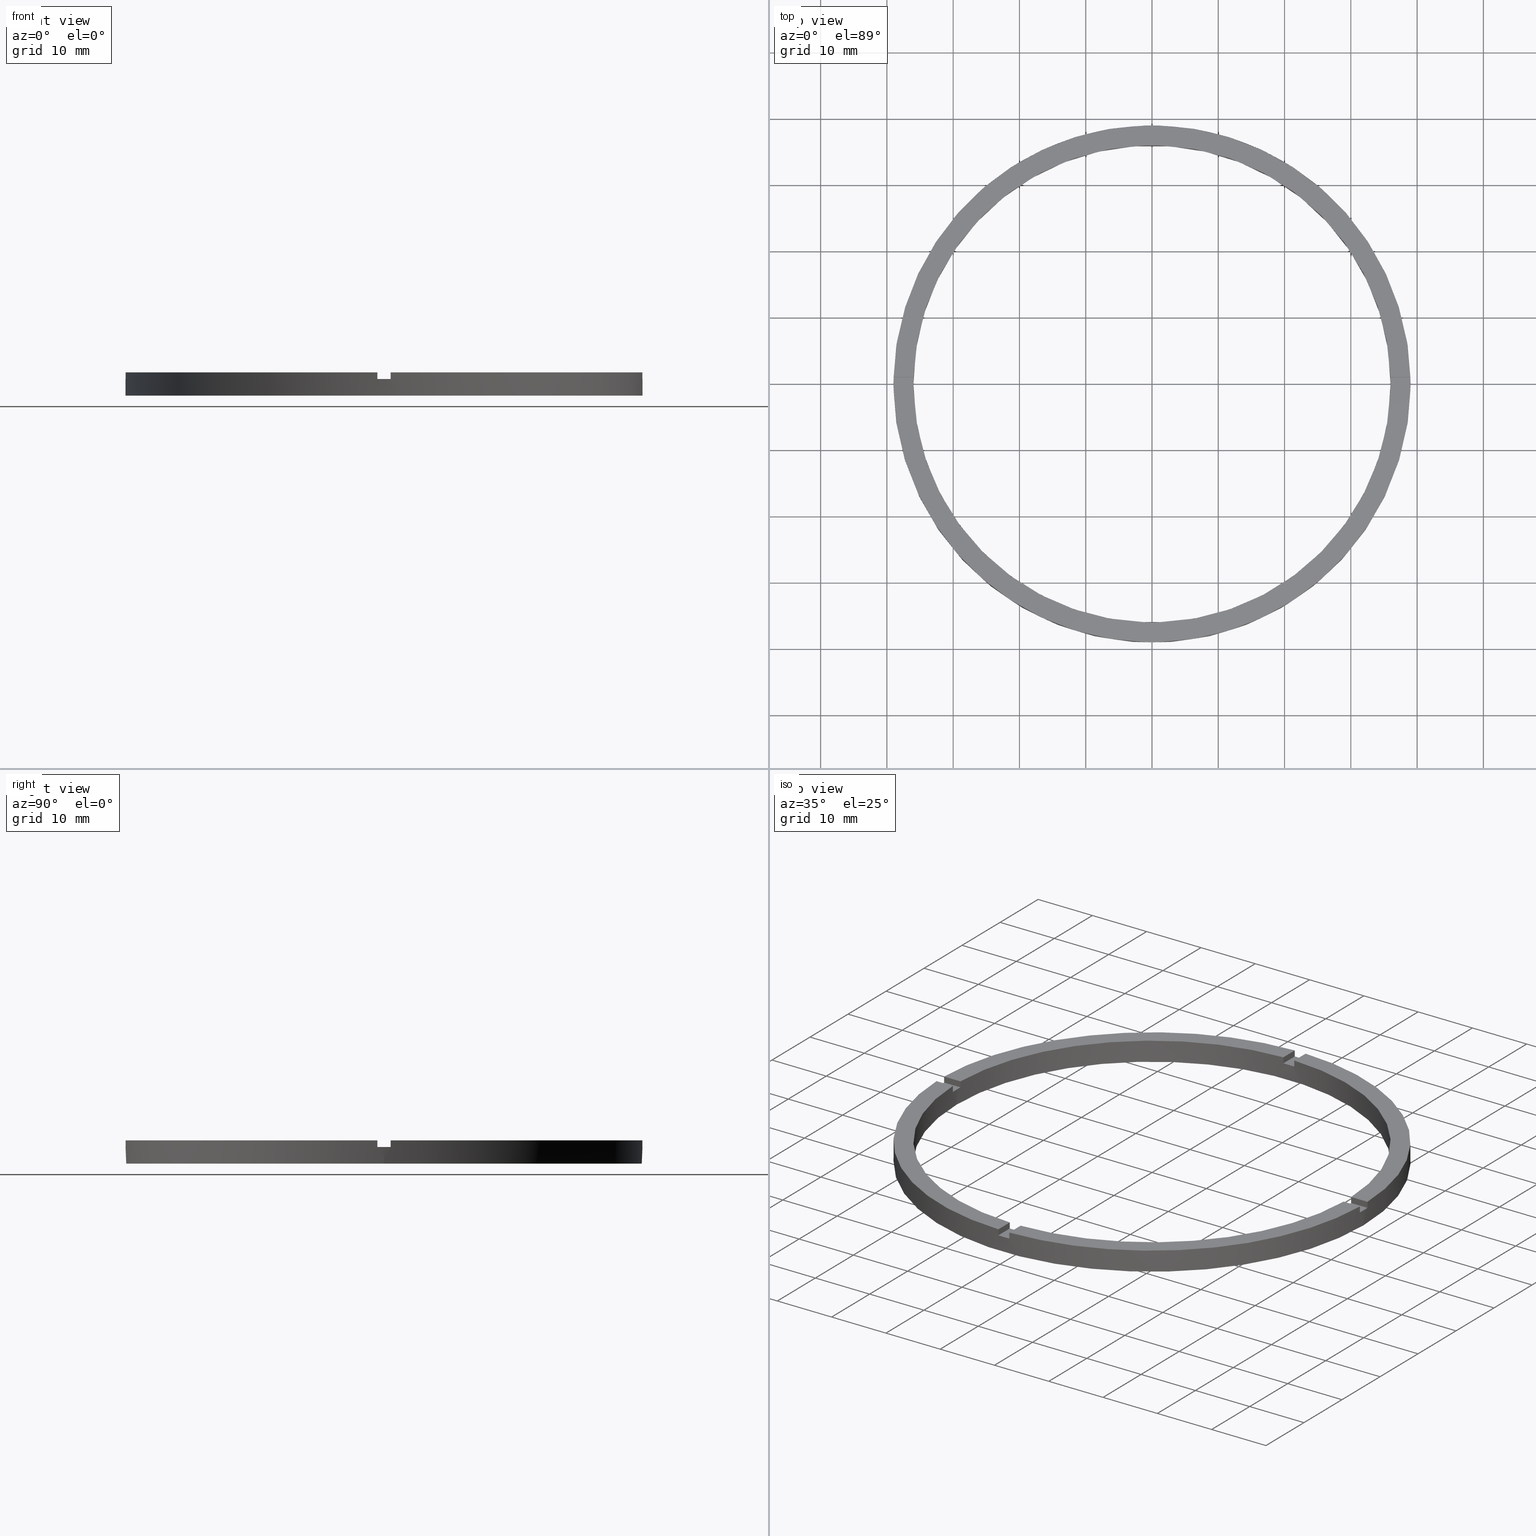
[diagram: canonical four-view strip — front | top / right | iso, engineering-drawing reading convention]
A machine part, canonical four-view strip (front | top / right | iso — engineering-drawing reading convention). The complete STEP part file that produces these views, byte-faithful:
ISO-10303-21;
HEADER;
FILE_DESCRIPTION (( 'STEP AP203' ),
    '1' );
FILE_NAME ('514160.step',
    '2024-12-26T02:43:21',
    ( 'MSI' ),
    ( '' ),
    'SwSTEP 2.0',
    'SolidWorks 2020',
    '' );
FILE_SCHEMA (( 'CONFIG_CONTROL_DESIGN' ));
ENDSEC;

DATA;
#1 = DIRECTION ( 'NONE',  ( 1.000000000000000000, 0.000000000000000000, -0.000000000000000000 ) ) ;
#2 = APPROVAL_DATE_TIME ( #517, #704 ) ;
#3 = AXIS2_PLACEMENT_3D ( 'NONE', #327, #505, #560 ) ;
#4 = EDGE_CURVE ( 'NONE', #248, #113, #143, .T. ) ;
#5 = DIRECTION ( 'NONE',  ( -1.000000000000000000, -1.951563910473907735E-16, 0.000000000000000000 ) ) ;
#6 = CARTESIAN_POINT ( 'NONE',  ( 0.000000000000000000, 0.000000000000000000, 2.500000000000000000 ) ) ;
#7 = ADVANCED_FACE ( 'NONE', ( #655 ), #149, .F. ) ;
#8 = CARTESIAN_POINT ( 'NONE',  ( 0.000000000000000000, 0.000000000000000000, 3.500000000000000000 ) ) ;
#9 = DIRECTION ( 'NONE',  ( -0.000000000000000000, -0.000000000000000000, -1.000000000000000000 ) ) ;
#10 = ADVANCED_FACE ( 'NONE', ( #408 ), #109, .T. ) ;
#11 = EDGE_CURVE ( 'NONE', #224, #164, #133, .T. ) ;
#12 = AXIS2_PLACEMENT_3D ( 'NONE', #17, #382, #639 ) ;
#13 = LINE ( 'NONE', #160, #24 ) ;
#14 = CARTESIAN_POINT ( 'NONE',  ( 0.9999999999998406830, -38.98717737923585958, 2.500000000000000000 ) ) ;
#15 = EDGE_CURVE ( 'NONE', #238, #721, #402, .T. ) ;
#16 = DIRECTION ( 'NONE',  ( 0.000000000000000000, 0.000000000000000000, 1.000000000000000000 ) ) ;
#17 = CARTESIAN_POINT ( 'NONE',  ( -29.00000000000018474, 0.9999999999999740208, 2.500000000000000000 ) ) ;
#18 = CARTESIAN_POINT ( 'NONE',  ( 0.9999999999999746869, 35.98610843089316091, 2.500000000000000000 ) ) ;
#19 = CARTESIAN_POINT ( 'NONE',  ( 0.000000000000000000, 0.000000000000000000, 3.500000000000000000 ) ) ;
#20 = LINE ( 'NONE', #316, #551 ) ;
#21 = EDGE_CURVE ( 'NONE', #637, #217, #150, .T. ) ;
#22 = LINE ( 'NONE', #336, #304 ) ;
#23 = EDGE_CURVE ( 'NONE', #488, #410, #404, .T. ) ;
#24 = VECTOR ( 'NONE', #27, 1000.000000000000000 ) ;
#25 = CARTESIAN_POINT ( 'NONE',  ( 0.9999999999998393507, -29.00000000000017764, 3.500000000000000000 ) ) ;
#26 = CYLINDRICAL_SURFACE ( 'NONE', #394, 39.00000000000000000 ) ;
#27 = DIRECTION ( 'NONE',  ( -1.301042606982605074E-16, 1.000000000000000000, -0.000000000000000000 ) ) ;
#28 = COORDINATED_UNIVERSAL_TIME_OFFSET ( 8, 0, .AHEAD. ) ;
#29 = FACE_OUTER_BOUND ( 'NONE', #705, .T. ) ;
#30 = FACE_OUTER_BOUND ( 'NONE', #708, .T. ) ;
#31 = PERSON_AND_ORGANIZATION_ROLE ( 'design_supplier' ) ;
#32 = VECTOR ( 'NONE', #112, 1000.000000000000000 ) ;
#33 = DIRECTION ( 'NONE',  ( 1.000000000000000000, 0.000000000000000000, 0.000000000000000000 ) ) ;
#34 = VECTOR ( 'NONE', #267, 1000.000000000000000 ) ;
#35 = CC_DESIGN_PERSON_AND_ORGANIZATION_ASSIGNMENT ( #102, #763, ( #699 ) ) ;
#36 = LINE ( 'NONE', #122, #544 ) ;
#37 = CIRCLE ( 'NONE', #753, 36.00000000000000000 ) ;
#38 = APPROVAL_ROLE ( '' ) ;
#39 = PRODUCT_RELATED_PRODUCT_CATEGORY ( 'detail', '', ( #503 ) ) ;
#40 = VECTOR ( 'NONE', #359, 1000.000000000000000 ) ;
#41 = FACE_BOUND ( 'NONE', #232, .T. ) ;
#42 = VECTOR ( 'NONE', #156, 1000.000000000000000 ) ;
#43 = CARTESIAN_POINT ( 'NONE',  ( 0.000000000000000000, 0.000000000000000000, 2.500000000000000000 ) ) ;
#44 = AXIS2_PLACEMENT_3D ( 'NONE', #8, #274, #601 ) ;
#45 = AXIS2_PLACEMENT_3D ( 'NONE', #528, #124, #591 ) ;
#46 = DIRECTION ( 'NONE',  ( 1.000000000000000000, 0.000000000000000000, 0.000000000000000000 ) ) ;
#47 = CARTESIAN_POINT ( 'NONE',  ( 0.000000000000000000, 0.000000000000000000, 3.500000000000000000 ) ) ;
#48 = FACE_OUTER_BOUND ( 'NONE', #167, .T. ) ;
#49 = DIRECTION ( 'NONE',  ( -0.000000000000000000, -0.000000000000000000, -1.000000000000000000 ) ) ;
#50 = EDGE_CURVE ( 'NONE', #462, #493, #392, .T. ) ;
#51 = CARTESIAN_POINT ( 'NONE',  ( 0.000000000000000000, 0.000000000000000000, 0.000000000000000000 ) ) ;
#52 = DIRECTION ( 'NONE',  ( 0.000000000000000000, 0.000000000000000000, 1.000000000000000000 ) ) ;
#53 = AXIS2_PLACEMENT_3D ( 'NONE', #120, #574, #177 ) ;
#54 = EDGE_CURVE ( 'NONE', #696, #496, #155, .T. ) ;
#55 = CIRCLE ( 'NONE', #577, 39.00000000000000000 ) ;
#56 = DIRECTION ( 'NONE',  ( -1.000000000000000000, -1.951563910473907735E-16, 0.000000000000000000 ) ) ;
#57 = ADVANCED_FACE ( 'NONE', ( #662 ), #279, .F. ) ;
#58 = CARTESIAN_POINT ( 'NONE',  ( -39.00000000000000000, 0.000000000000000000, 3.500000000000000000 ) ) ;
#59 = CARTESIAN_POINT ( 'NONE',  ( 0.000000000000000000, 0.000000000000000000, 2.500000000000000000 ) ) ;
#60 = CARTESIAN_POINT ( 'NONE',  ( 0.9999999999999746869, 38.98717737923585247, 2.500000000000000000 ) ) ;
#61 = FACE_OUTER_BOUND ( 'NONE', #222, .T. ) ;
#62 = PERSON_AND_ORGANIZATION_ROLE ( 'design_owner' ) ;
#63 = DIRECTION ( 'NONE',  ( -0.000000000000000000, -0.000000000000000000, -1.000000000000000000 ) ) ;
#64 = VECTOR ( 'NONE', #63, 1000.000000000000000 ) ;
#65 = CIRCLE ( 'NONE', #713, 36.00000000000000000 ) ;
#66 = CARTESIAN_POINT ( 'NONE',  ( 28.99999999999998934, 0.9999999999998421263, 2.500000000000000000 ) ) ;
#67 = LINE ( 'NONE', #139, #335 ) ;
#68 = ADVANCED_FACE ( 'NONE', ( #29 ), #659, .T. ) ;
#69 = CARTESIAN_POINT ( 'NONE',  ( -38.98717737923585247, -1.000000000000027978, 2.500000000000000000 ) ) ;
#70 =( GEOMETRIC_REPRESENTATION_CONTEXT ( 3 ) GLOBAL_UNCERTAINTY_ASSIGNED_CONTEXT ( ( #519 ) ) GLOBAL_UNIT_ASSIGNED_CONTEXT ( ( #218, #420, #638 ) ) REPRESENTATION_CONTEXT ( 'NONE', 'WORKASPACE' ) );
#71 = VECTOR ( 'NONE', #178, 1000.000000000000000 ) ;
#72 = LINE ( 'NONE', #145, #348 ) ;
#73 = CC_DESIGN_SECURITY_CLASSIFICATION ( #366, ( #87 ) ) ;
#74 = APPROVAL_STATUS ( 'not_yet_approved' ) ;
#75 = DIRECTION ( 'NONE',  ( 1.000000000000000000, 0.000000000000000000, 0.000000000000000000 ) ) ;
#76 = VECTOR ( 'NONE', #16, 1000.000000000000000 ) ;
#77 = DIRECTION ( 'NONE',  ( 0.000000000000000000, 0.000000000000000000, 1.000000000000000000 ) ) ;
#78 = VECTOR ( 'NONE', #56, 1000.000000000000000 ) ;
#79 = LOCAL_TIME ( 10, 43, 21.00000000000000000, #615 ) ;
#80 = LINE ( 'NONE', #461, #608 ) ;
#81 = EDGE_CURVE ( 'NONE', #238, #465, #541, .T. ) ;
#82 = CIRCLE ( 'NONE', #277, 39.00000000000000000 ) ;
#83 = CARTESIAN_POINT ( 'NONE',  ( -36.00000000000000000, 0.000000000000000000, 0.000000000000000000 ) ) ;
#84 = AXIS2_PLACEMENT_3D ( 'NONE', #66, #377, #553 ) ;
#85 = CIRCLE ( 'NONE', #398, 36.00000000000000000 ) ;
#86 = FACE_OUTER_BOUND ( 'NONE', #255, .T. ) ;
#87 = PRODUCT_DEFINITION_FORMATION_WITH_SPECIFIED_SOURCE ( '�κ�', '', #503, .NOT_KNOWN. ) ;
#88 = VECTOR ( 'NONE', #484, 1000.000000000000000 ) ;
#89 = LINE ( 'NONE', #681, #349 ) ;
#90 = LINE ( 'NONE', #730, #604 ) ;
#91 = CARTESIAN_POINT ( 'NONE',  ( -35.98610843089316091, 0.9999999999999726885, 3.500000000000000000 ) ) ;
#92 = LINE ( 'NONE', #602, #365 ) ;
#93 = DATE_AND_TIME ( #605, #79 ) ;
#94 = CARTESIAN_POINT ( 'NONE',  ( -1.000000000000025313, 28.99999999999999645, 2.500000000000000000 ) ) ;
#95 = EDGE_CURVE ( 'NONE', #735, #197, #285, .T. ) ;
#96 = PERSON ( 'δָ��', 'δָ��', 'δָ��', ('δָ��'), ('δָ��'), ('δָ��') ) ;
#97 = LINE ( 'NONE', #738, #76 ) ;
#98 = ORGANIZATION ( 'δָ��', 'δָ��', '' ) ;
#99 = EDGE_CURVE ( 'NONE', #744, #113, #292, .T. ) ;
#100 = VECTOR ( 'NONE', #567, 1000.000000000000000 ) ;
#101 = APPROVAL_STATUS ( 'not_yet_approved' ) ;
#102 = PERSON_AND_ORGANIZATION ( #96, #98 ) ;
#103 = VECTOR ( 'NONE', #265, 1000.000000000000000 ) ;
#104 = DIRECTION ( 'NONE',  ( -1.301042606982605074E-16, 1.000000000000000000, 0.000000000000000000 ) ) ;
#105 = CIRCLE ( 'NONE', #641, 39.00000000000000000 ) ;
#106 = LOCAL_TIME ( 10, 43, 21.00000000000000000, #362 ) ;
#107 = LINE ( 'NONE', #25, #100 ) ;
#108 = SECURITY_CLASSIFICATION_LEVEL ( 'unclassified' ) ;
#109 = PLANE ( 'NONE',  #53 ) ;
#110 = DIRECTION ( 'NONE',  ( 0.000000000000000000, 0.000000000000000000, 1.000000000000000000 ) ) ;
#111 = VERTEX_POINT ( 'NONE', #490 ) ;
#112 = DIRECTION ( 'NONE',  ( -1.000000000000000000, -6.505213034913025371E-17, -0.000000000000000000 ) ) ;
#113 = VERTEX_POINT ( 'NONE', #552 ) ;
#114 = LINE ( 'NONE', #214, #103 ) ;
#115 = PLANE ( 'NONE',  #679 ) ;
#116 = ORIENTED_EDGE ( 'NONE', *, *, #777, .F. ) ;
#117 = ADVANCED_FACE ( 'NONE', ( #296 ), #272, .F. ) ;
#118 = AXIS2_PLACEMENT_3D ( 'NONE', #686, #396, #33 ) ;
#119 = CARTESIAN_POINT ( 'NONE',  ( 0.000000000000000000, 0.000000000000000000, 3.500000000000000000 ) ) ;
#120 = CARTESIAN_POINT ( 'NONE',  ( 0.000000000000000000, 0.000000000000000000, 3.500000000000000000 ) ) ;
#121 = CARTESIAN_POINT ( 'NONE',  ( -38.98717737923585247, 0.9999999999999720224, 2.500000000000000000 ) ) ;
#122 = CARTESIAN_POINT ( 'NONE',  ( -1.000000000000025313, 35.98610843089315381, 3.500000000000000000 ) ) ;
#123 = ORIENTED_EDGE ( 'NONE', *, *, #23, .T. ) ;
#124 = DIRECTION ( 'NONE',  ( 0.000000000000000000, 0.000000000000000000, 1.000000000000000000 ) ) ;
#125 = DIRECTION ( 'NONE',  ( 0.000000000000000000, 0.000000000000000000, 1.000000000000000000 ) ) ;
#126 = ORIENTED_EDGE ( 'NONE', *, *, #21, .F. ) ;
#127 = EDGE_CURVE ( 'NONE', #637, #231, #22, .T. ) ;
#128 = EDGE_CURVE ( 'NONE', #462, #248, #531, .T. ) ;
#129 = AXIS2_PLACEMENT_3D ( 'NONE', #131, #184, #536 ) ;
#130 = DIRECTION ( 'NONE',  ( 1.000000000000000000, 0.000000000000000000, 0.000000000000000000 ) ) ;
#131 = CARTESIAN_POINT ( 'NONE',  ( 0.000000000000000000, 0.000000000000000000, 3.500000000000000000 ) ) ;
#132 = CARTESIAN_POINT ( 'NONE',  ( -1.000000000000025313, 35.98610843089315381, 3.500000000000000000 ) ) ;
#133 = LINE ( 'NONE', #640, #157 ) ;
#134 = VECTOR ( 'NONE', #425, 1000.000000000000000 ) ;
#135 = CARTESIAN_POINT ( 'NONE',  ( 0.9999999999999746869, 38.98717737923585247, 3.500000000000000000 ) ) ;
#136 = ADVANCED_FACE ( 'NONE', ( #295 ), #281, .F. ) ;
#137 = EDGE_CURVE ( 'NONE', #741, #693, #13, .T. ) ;
#138 = DIRECTION ( 'NONE',  ( 0.000000000000000000, 0.000000000000000000, -1.000000000000000000 ) ) ;
#139 = CARTESIAN_POINT ( 'NONE',  ( -38.98717737923585247, 0.9999999999999720224, 3.500000000000000000 ) ) ;
#140 = EDGE_CURVE ( 'NONE', #735, #252, #558, .T. ) ;
#141 = PLANE ( 'NONE',  #289 ) ;
#142 = DIRECTION ( 'NONE',  ( 1.000000000000000000, 0.000000000000000000, 0.000000000000000000 ) ) ;
#143 = CIRCLE ( 'NONE', #685, 36.00000000000000000 ) ;
#144 = APPROVAL_ROLE ( '' ) ;
#145 = CARTESIAN_POINT ( 'NONE',  ( 36.00000000000000000, 4.408728476930470856E-15, 3.500000000000000000 ) ) ;
#146 = AXIS2_PLACEMENT_3D ( 'NONE', #665, #722, #422 ) ;
#147 = PLANE ( 'NONE',  #330 ) ;
#148 = CARTESIAN_POINT ( 'NONE',  ( 0.9999999999998404610, -35.98610843089316091, 2.500000000000000000 ) ) ;
#149 = CYLINDRICAL_SURFACE ( 'NONE', #678, 36.00000000000000000 ) ;
#150 = LINE ( 'NONE', #470, #152 ) ;
#151 = AXIS2_PLACEMENT_3D ( 'NONE', #221, #211, #388 ) ;
#152 = VECTOR ( 'NONE', #525, 1000.000000000000000 ) ;
#153 = EDGE_CURVE ( 'NONE', #721, #760, #294, .T. ) ;
#154 = DIRECTION ( 'NONE',  ( 1.301042606982605074E-16, -1.000000000000000000, 0.000000000000000000 ) ) ;
#155 = LINE ( 'NONE', #58, #134 ) ;
#156 = DIRECTION ( 'NONE',  ( -0.000000000000000000, -1.000000000000000000, -0.000000000000000000 ) ) ;
#157 = VECTOR ( 'NONE', #305, 1000.000000000000000 ) ;
#158 = VECTOR ( 'NONE', #5, 1000.000000000000000 ) ;
#159 = CARTESIAN_POINT ( 'NONE',  ( 0.000000000000000000, 0.000000000000000000, 2.500000000000000000 ) ) ;
#160 = CARTESIAN_POINT ( 'NONE',  ( 0.9999999999998393507, -29.00000000000017764, 2.500000000000000000 ) ) ;
#161 = ORIENTED_EDGE ( 'NONE', *, *, #712, .F. ) ;
#162 = ORIENTED_EDGE ( 'NONE', *, *, #619, .F. ) ;
#163 = EDGE_CURVE ( 'NONE', #735, #739, #300, .T. ) ;
#164 = VERTEX_POINT ( 'NONE', #672 ) ;
#165 = APPROVAL_STATUS ( 'not_yet_approved' ) ;
#166 = ORIENTED_EDGE ( 'NONE', *, *, #50, .F. ) ;
#167 = EDGE_LOOP ( 'NONE', ( #736, #443, #756, #674, #441, #749, #196, #752, #714, #697, #677, #700 ) ) ;
#168 = DIRECTION ( 'NONE',  ( 0.000000000000000000, 0.000000000000000000, 1.000000000000000000 ) ) ;
#169 = ORIENTED_EDGE ( 'NONE', *, *, #633, .F. ) ;
#170 = CARTESIAN_POINT ( 'NONE',  ( -1.000000000000159650, -35.98610843089315381, 3.500000000000000000 ) ) ;
#171 = ORIENTED_EDGE ( 'NONE', *, *, #4, .F. ) ;
#172 = EDGE_CURVE ( 'NONE', #227, #111, #562, .T. ) ;
#173 = CARTESIAN_POINT ( 'NONE',  ( -36.00000000000000000, 0.000000000000000000, 3.500000000000000000 ) ) ;
#174 = EDGE_CURVE ( 'NONE', #224, #257, #535, .T. ) ;
#175 = DIRECTION ( 'NONE',  ( 0.000000000000000000, -0.000000000000000000, 1.000000000000000000 ) ) ;
#176 = ADVANCED_FACE ( 'NONE', ( #538 ), #565, .T. ) ;
#177 = DIRECTION ( 'NONE',  ( 1.000000000000000000, 0.000000000000000000, -0.000000000000000000 ) ) ;
#178 = DIRECTION ( 'NONE',  ( -0.000000000000000000, -0.000000000000000000, -1.000000000000000000 ) ) ;
#179 = CARTESIAN_POINT ( 'NONE',  ( 39.00000000000000000, 4.776122516674677878E-15, 0.000000000000000000 ) ) ;
#180 = ADVANCED_FACE ( 'NONE', ( #30 ), #147, .T. ) ;
#181 = DIRECTION ( 'NONE',  ( 0.000000000000000000, 0.000000000000000000, 1.000000000000000000 ) ) ;
#182 = ADVANCED_BREP_SHAPE_REPRESENTATION ( '514160', ( #339, #449 ), #70 ) ;
#183 = ORIENTED_EDGE ( 'NONE', *, *, #163, .T. ) ;
#184 = DIRECTION ( 'NONE',  ( 0.000000000000000000, 0.000000000000000000, 1.000000000000000000 ) ) ;
#185 = ORIENTED_EDGE ( 'NONE', *, *, #11, .T. ) ;
#186 = AXIS2_PLACEMENT_3D ( 'NONE', #502, #175, #46 ) ;
#187 = ADVANCED_FACE ( 'NONE', ( #287 ), #323, .T. ) ;
#188 = AXIS2_PLACEMENT_3D ( 'NONE', #51, #181, #518 ) ;
#189 = VERTEX_POINT ( 'NONE', #588 ) ;
#190 = APPROVAL_DATE_TIME ( #769, #498 ) ;
#191 = DIRECTION ( 'NONE',  ( 1.000000000000000000, 0.000000000000000000, 0.000000000000000000 ) ) ;
#192 = CARTESIAN_POINT ( 'NONE',  ( 0.000000000000000000, 0.000000000000000000, 3.500000000000000000 ) ) ;
#193 = CC_DESIGN_DATE_AND_TIME_ASSIGNMENT ( #346, #515, ( #699 ) ) ;
#194 = CARTESIAN_POINT ( 'NONE',  ( 28.99999999999998934, 0.9999999999998421263, 3.500000000000000000 ) ) ;
#195 = CARTESIAN_POINT ( 'NONE',  ( -1.000000000000025313, 28.99999999999999645, 3.500000000000000000 ) ) ;
#196 = ORIENTED_EDGE ( 'NONE', *, *, #250, .F. ) ;
#197 = VERTEX_POINT ( 'NONE', #529 ) ;
#198 = ORIENTED_EDGE ( 'NONE', *, *, #427, .F. ) ;
#199 = DIRECTION ( 'NONE',  ( 0.000000000000000000, 0.000000000000000000, 1.000000000000000000 ) ) ;
#200 = DIRECTION ( 'NONE',  ( -0.000000000000000000, 0.000000000000000000, 1.000000000000000000 ) ) ;
#201 = ORIENTED_EDGE ( 'NONE', *, *, #537, .F. ) ;
#202 = AXIS2_PLACEMENT_3D ( 'NONE', #569, #483, #634 ) ;
#203 = ORIENTED_EDGE ( 'NONE', *, *, #215, .F. ) ;
#204 = EDGE_CURVE ( 'NONE', #238, #227, #308, .T. ) ;
#205 = ORIENTED_EDGE ( 'NONE', *, *, #724, .F. ) ;
#206 = ORIENTED_EDGE ( 'NONE', *, *, #174, .T. ) ;
#207 = CARTESIAN_POINT ( 'NONE',  ( -1.000000000000025313, 38.98717737923585247, 2.500000000000000000 ) ) ;
#208 = DIRECTION ( 'NONE',  ( -0.000000000000000000, -0.000000000000000000, -1.000000000000000000 ) ) ;
#209 = ORIENTED_EDGE ( 'NONE', *, *, #633, .T. ) ;
#210 = CARTESIAN_POINT ( 'NONE',  ( -29.00000000000018474, 0.9999999999999740208, 2.500000000000000000 ) ) ;
#211 = DIRECTION ( 'NONE',  ( 0.000000000000000000, 0.000000000000000000, 1.000000000000000000 ) ) ;
#212 = ORIENTED_EDGE ( 'NONE', *, *, #508, .F. ) ;
#213 = ORIENTED_EDGE ( 'NONE', *, *, #775, .T. ) ;
#214 = CARTESIAN_POINT ( 'NONE',  ( 35.98610843089316091, 0.9999999999998425704, 3.500000000000000000 ) ) ;
#215 = EDGE_CURVE ( 'NONE', #226, #399, #20, .T. ) ;
#216 = ORIENTED_EDGE ( 'NONE', *, *, #172, .F. ) ;
#217 = VERTEX_POINT ( 'NONE', #60 ) ;
#218 =( LENGTH_UNIT ( ) NAMED_UNIT ( * ) SI_UNIT ( .MILLI., .METRE. ) );
#219 = EDGE_LOOP ( 'NONE', ( #629, #630, #209, #256 ) ) ;
#220 = ORIENTED_EDGE ( 'NONE', *, *, #370, .F. ) ;
#221 = CARTESIAN_POINT ( 'NONE',  ( 0.000000000000000000, 0.000000000000000000, 3.500000000000000000 ) ) ;
#222 = EDGE_LOOP ( 'NONE', ( #116, #123, #243, #452 ) ) ;
#223 = ORIENTED_EDGE ( 'NONE', *, *, #427, .T. ) ;
#224 = VERTEX_POINT ( 'NONE', #542 ) ;
#225 = ORIENTED_EDGE ( 'NONE', *, *, #378, .T. ) ;
#226 = VERTEX_POINT ( 'NONE', #423 ) ;
#227 = VERTEX_POINT ( 'NONE', #132 ) ;
#228 = CC_DESIGN_APPROVAL ( #395, ( #699 ) ) ;
#229 = ORIENTED_EDGE ( 'NONE', *, *, #338, .T. ) ;
#230 = ORIENTED_EDGE ( 'NONE', *, *, #54, .T. ) ;
#231 = VERTEX_POINT ( 'NONE', #702 ) ;
#232 = EDGE_LOOP ( 'NONE', ( #453, #680 ) ) ;
#233 = PERSON_AND_ORGANIZATION_ROLE ( 'classification_officer' ) ;
#234 = ORIENTED_EDGE ( 'NONE', *, *, #298, .T. ) ;
#235 = ORIENTED_EDGE ( 'NONE', *, *, #473, .F. ) ;
#236 = ORIENTED_EDGE ( 'NONE', *, *, #137, .T. ) ;
#237 = DESIGN_CONTEXT ( 'detailed design', #487, 'design' ) ;
#238 = VERTEX_POINT ( 'NONE', #780 ) ;
#239 = EDGE_CURVE ( 'NONE', #493, #696, #566, .T. ) ;
#240 = AXIS2_PLACEMENT_3D ( 'NONE', #454, #649, #247 ) ;
#241 = ORIENTED_EDGE ( 'NONE', *, *, #766, .F. ) ;
#242 = CARTESIAN_POINT ( 'NONE',  ( -35.98610843089316091, 0.9999999999999726885, 2.500000000000000000 ) ) ;
#243 = ORIENTED_EDGE ( 'NONE', *, *, #352, .T. ) ;
#244 = CARTESIAN_POINT ( 'NONE',  ( 0.000000000000000000, 0.000000000000000000, 0.000000000000000000 ) ) ;
#245 = ORIENTED_EDGE ( 'NONE', *, *, #95, .T. ) ;
#246 = EDGE_LOOP ( 'NONE', ( #126, #459, #486, #468 ) ) ;
#247 = DIRECTION ( 'NONE',  ( 1.000000000000000000, 0.000000000000000000, 0.000000000000000000 ) ) ;
#248 = VERTEX_POINT ( 'NONE', #731 ) ;
#249 = ORIENTED_EDGE ( 'NONE', *, *, #311, .F. ) ;
#250 = EDGE_CURVE ( 'NONE', #227, #760, #36, .T. ) ;
#251 = VERTEX_POINT ( 'NONE', #179 ) ;
#252 = VERTEX_POINT ( 'NONE', #254 ) ;
#253 = PLANE ( 'NONE',  #429 ) ;
#254 = CARTESIAN_POINT ( 'NONE',  ( 38.98717737923585958, 0.9999999999998427924, 2.500000000000000000 ) ) ;
#255 = EDGE_LOOP ( 'NONE', ( #245, #495, #387, #710 ) ) ;
#256 = ORIENTED_EDGE ( 'NONE', *, *, #11, .F. ) ;
#257 = VERTEX_POINT ( 'NONE', #307 ) ;
#258 = EDGE_LOOP ( 'NONE', ( #497, #463, #492, #770, #260, #759, #718, #720, #706, #225, #261, #692 ) ) ;
#259 = CARTESIAN_POINT ( 'NONE',  ( 35.98610843089315381, -1.000000000000157430, 3.500000000000000000 ) ) ;
#260 = ORIENTED_EDGE ( 'NONE', *, *, #239, .F. ) ;
#261 = ORIENTED_EDGE ( 'NONE', *, *, #163, .F. ) ;
#262 = DIRECTION ( 'NONE',  ( 0.000000000000000000, 0.000000000000000000, 1.000000000000000000 ) ) ;
#263 = CARTESIAN_POINT ( 'NONE',  ( 0.000000000000000000, 0.000000000000000000, 2.500000000000000000 ) ) ;
#264 = ADVANCED_FACE ( 'NONE', ( #534, #41 ), #632, .F. ) ;
#265 = DIRECTION ( 'NONE',  ( -0.000000000000000000, -0.000000000000000000, -1.000000000000000000 ) ) ;
#266 = DIRECTION ( 'NONE',  ( -1.000000000000000000, 0.000000000000000000, 0.000000000000000000 ) ) ;
#267 = DIRECTION ( 'NONE',  ( -1.000000000000000000, -6.505213034913025371E-17, -0.000000000000000000 ) ) ;
#268 = PLANE ( 'NONE',  #146 ) ;
#269 = DIRECTION ( 'NONE',  ( -0.000000000000000000, -1.000000000000000000, -0.000000000000000000 ) ) ;
#270 = DIRECTION ( 'NONE',  ( -0.000000000000000000, -0.000000000000000000, -1.000000000000000000 ) ) ;
#271 = DIRECTION ( 'NONE',  ( 1.000000000000000000, 0.000000000000000000, 0.000000000000000000 ) ) ;
#272 = PLANE ( 'NONE',  #12 ) ;
#273 = CARTESIAN_POINT ( 'NONE',  ( 0.000000000000000000, 0.000000000000000000, 3.500000000000000000 ) ) ;
#274 = DIRECTION ( 'NONE',  ( 0.000000000000000000, 0.000000000000000000, 1.000000000000000000 ) ) ;
#275 = EDGE_CURVE ( 'NONE', #189, #644, #37, .T. ) ;
#276 = EDGE_CURVE ( 'NONE', #435, #164, #303, .T. ) ;
#277 = AXIS2_PLACEMENT_3D ( 'NONE', #59, #407, #688 ) ;
#278 = CARTESIAN_POINT ( 'NONE',  ( 38.98717737923585958, 0.9999999999998427924, 3.500000000000000000 ) ) ;
#279 = PLANE ( 'NONE',  #514 ) ;
#280 = EDGE_CURVE ( 'NONE', #257, #252, #555, .T. ) ;
#281 = PLANE ( 'NONE',  #603 ) ;
#282 = PERSON_AND_ORGANIZATION ( #96, #98 ) ;
#283 = COORDINATED_UNIVERSAL_TIME_OFFSET ( 8, 0, .AHEAD. ) ;
#284 = CARTESIAN_POINT ( 'NONE',  ( 38.98717737923585958, 0.9999999999998427924, 3.500000000000000000 ) ) ;
#285 = LINE ( 'NONE', #194, #34 ) ;
#286 = DATE_AND_TIME ( #543, #527 ) ;
#287 = FACE_OUTER_BOUND ( 'NONE', #761, .T. ) ;
#288 = PERSON_AND_ORGANIZATION_ROLE ( 'creator' ) ;
#289 = AXIS2_PLACEMENT_3D ( 'NONE', #389, #317, #384 ) ;
#290 = VECTOR ( 'NONE', #269, 1000.000000000000000 ) ;
#291 = LINE ( 'NONE', #458, #32 ) ;
#292 = LINE ( 'NONE', #319, #532 ) ;
#293 = CARTESIAN_POINT ( 'NONE',  ( -1.000000000000159428, -38.98717737923584536, 3.500000000000000000 ) ) ;
#294 = LINE ( 'NONE', #94, #42 ) ;
#295 = FACE_OUTER_BOUND ( 'NONE', #439, .T. ) ;
#296 = FACE_OUTER_BOUND ( 'NONE', #725, .T. ) ;
#297 = AXIS2_PLACEMENT_3D ( 'NONE', #6, #478, #716 ) ;
#298 = EDGE_CURVE ( 'NONE', #415, #693, #314, .T. ) ;
#299 = CARTESIAN_POINT ( 'NONE',  ( 0.9999999999998406830, -38.98717737923585958, 3.500000000000000000 ) ) ;
#300 = CIRCLE ( 'NONE', #151, 39.00000000000000000 ) ;
#301 = ADVANCED_FACE ( 'NONE', ( #559 ), #546, .T. ) ;
#302 = CC_DESIGN_PERSON_AND_ORGANIZATION_ASSIGNMENT ( #524, #233, ( #366 ) ) ;
#303 = CIRCLE ( 'NONE', #44, 39.00000000000000000 ) ;
#304 = VECTOR ( 'NONE', #393, 1000.000000000000000 ) ;
#305 = DIRECTION ( 'NONE',  ( 0.000000000000000000, 0.000000000000000000, 1.000000000000000000 ) ) ;
#306 = CARTESIAN_POINT ( 'NONE',  ( -1.000000000000159650, -35.98610843089315381, 2.500000000000000000 ) ) ;
#307 = CARTESIAN_POINT ( 'NONE',  ( 39.00000000000000000, 4.776122516674677878E-15, 2.500000000000000000 ) ) ;
#308 = LINE ( 'NONE', #195, #290 ) ;
#309 = EDGE_CURVE ( 'NONE', #252, #499, #291, .T. ) ;
#310 = ADVANCED_FACE ( 'NONE', ( #561 ), #26, .T. ) ;
#311 = EDGE_CURVE ( 'NONE', #248, #644, #573, .T. ) ;
#312 = AXIS2_PLACEMENT_3D ( 'NONE', #313, #368, #477 ) ;
#313 = CARTESIAN_POINT ( 'NONE',  ( 0.000000000000000000, 0.000000000000000000, 3.500000000000000000 ) ) ;
#314 = LINE ( 'NONE', #428, #40 ) ;
#315 = CARTESIAN_POINT ( 'NONE',  ( -35.98610843089315381, -1.000000000000027311, 3.500000000000000000 ) ) ;
#316 = CARTESIAN_POINT ( 'NONE',  ( -29.00000000000018474, -1.000000000000025979, 3.500000000000000000 ) ) ;
#317 = DIRECTION ( 'NONE',  ( -0.000000000000000000, 0.000000000000000000, 1.000000000000000000 ) ) ;
#318 = EDGE_CURVE ( 'NONE', #637, #760, #568, .T. ) ;
#319 = CARTESIAN_POINT ( 'NONE',  ( -29.00000000000018474, -1.000000000000025979, 2.500000000000000000 ) ) ;
#320 = CARTESIAN_POINT ( 'NONE',  ( 0.9999999999999746869, 28.99999999999999645, 3.500000000000000000 ) ) ;
#321 = DIRECTION ( 'NONE',  ( 1.000000000000000000, 0.000000000000000000, 0.000000000000000000 ) ) ;
#322 = DIRECTION ( 'NONE',  ( 0.000000000000000000, 0.000000000000000000, 1.000000000000000000 ) ) ;
#323 = PLANE ( 'NONE',  #297 ) ;
#324 = AXIS2_PLACEMENT_3D ( 'NONE', #433, #509, #321 ) ;
#325 = ADVANCED_FACE ( 'NONE', ( #48 ), #580, .F. ) ;
#326 = CC_DESIGN_DATE_AND_TIME_ASSIGNMENT ( #286, #345, ( #366 ) ) ;
#327 = CARTESIAN_POINT ( 'NONE',  ( 0.000000000000000000, 0.000000000000000000, 3.500000000000000000 ) ) ;
#328 = CIRCLE ( 'NONE', #539, 36.00000000000000000 ) ;
#329 = DIRECTION ( 'NONE',  ( 1.000000000000000000, 1.951563910473907735E-16, 0.000000000000000000 ) ) ;
#330 = AXIS2_PLACEMENT_3D ( 'NONE', #418, #125, #654 ) ;
#331 = LINE ( 'NONE', #617, #333 ) ;
#332 = CIRCLE ( 'NONE', #188, 36.00000000000000000 ) ;
#333 = VECTOR ( 'NONE', #669, 1000.000000000000000 ) ;
#334 = PRODUCT_DEFINITION_SHAPE ( 'NONE', 'NONE',  #699 ) ;
#335 = VECTOR ( 'NONE', #609, 1000.000000000000000 ) ;
#336 = CARTESIAN_POINT ( 'NONE',  ( 0.9999999999999746869, 35.98610843089316091, 3.500000000000000000 ) ) ;
#337 = CIRCLE ( 'NONE', #240, 39.00000000000000000 ) ;
#338 = EDGE_CURVE ( 'NONE', #217, #721, #55, .T. ) ;
#339 = MANIFOLD_SOLID_BREP ( '�г�-����1', #432 ) ;
#340 = DIRECTION ( 'NONE',  ( -0.000000000000000000, -0.000000000000000000, -1.000000000000000000 ) ) ;
#341 = FACE_OUTER_BOUND ( 'NONE', #219, .T. ) ;
#342 = EDGE_CURVE ( 'NONE', #488, #693, #328, .T. ) ;
#343 = LINE ( 'NONE', #782, #581 ) ;
#344 = CALENDAR_DATE ( 2024, 26, 12 ) ;
#345 = DATE_TIME_ROLE ( 'classification_date' ) ;
#346 = DATE_AND_TIME ( #344, #106 ) ;
#347 = APPROVAL_PERSON_ORGANIZATION ( #597, #704, #38 ) ;
#348 = VECTOR ( 'NONE', #564, 1000.000000000000000 ) ;
#349 = VECTOR ( 'NONE', #154, 1000.000000000000000 ) ;
#350 = CARTESIAN_POINT ( 'NONE',  ( -1.000000000000025313, 28.99999999999999645, 2.500000000000000000 ) ) ;
#351 = LINE ( 'NONE', #320, #88 ) ;
#352 = EDGE_CURVE ( 'NONE', #410, #476, #331, .T. ) ;
#353 = FACE_OUTER_BOUND ( 'NONE', #695, .T. ) ;
#354 = PERSON_AND_ORGANIZATION ( #96, #98 ) ;
#355 = CARTESIAN_POINT ( 'NONE',  ( -38.98717737923585247, 0.9999999999999720224, 3.500000000000000000 ) ) ;
#356 = LINE ( 'NONE', #715, #78 ) ;
#357 = APPROVAL_PERSON_ORGANIZATION ( #613, #395, #144 ) ;
#358 = FACE_OUTER_BOUND ( 'NONE', #743, .T. ) ;
#359 = DIRECTION ( 'NONE',  ( -0.000000000000000000, -0.000000000000000000, -1.000000000000000000 ) ) ;
#360 = CIRCLE ( 'NONE', #781, 36.00000000000000000 ) ;
#361 = DIRECTION ( 'NONE',  ( -0.000000000000000000, -0.000000000000000000, -1.000000000000000000 ) ) ;
#362 = COORDINATED_UNIVERSAL_TIME_OFFSET ( 8, 0, .AHEAD. ) ;
#363 = CARTESIAN_POINT ( 'NONE',  ( 0.9999999999998404610, -35.98610843089316091, 3.500000000000000000 ) ) ;
#364 = LINE ( 'NONE', #571, #618 ) ;
#365 = VECTOR ( 'NONE', #737, 1000.000000000000000 ) ;
#366 = SECURITY_CLASSIFICATION ( '', '', #108 ) ;
#367 = ORIENTED_EDGE ( 'NONE', *, *, #153, .T. ) ;
#368 = DIRECTION ( 'NONE',  ( 0.000000000000000000, 0.000000000000000000, 1.000000000000000000 ) ) ;
#369 = ORIENTED_EDGE ( 'NONE', *, *, #687, .T. ) ;
#370 = EDGE_CURVE ( 'NONE', #399, #113, #590, .T. ) ;
#371 = AXIS2_PLACEMENT_3D ( 'NONE', #192, #521, #266 ) ;
#372 = CARTESIAN_POINT ( 'NONE',  ( 39.00000000000000000, 4.776122516674677878E-15, 3.500000000000000000 ) ) ;
#373 = DIRECTION ( 'NONE',  ( 1.951563910473907735E-16, -1.000000000000000000, 0.000000000000000000 ) ) ;
#374 = VECTOR ( 'NONE', #626, 1000.000000000000000 ) ;
#375 = CARTESIAN_POINT ( 'NONE',  ( 0.000000000000000000, 0.000000000000000000, 2.500000000000000000 ) ) ;
#376 = DIRECTION ( 'NONE',  ( 1.000000000000000000, 1.951563910473907735E-16, -0.000000000000000000 ) ) ;
#377 = DIRECTION ( 'NONE',  ( -6.505213034913025371E-17, 1.000000000000000000, 0.000000000000000000 ) ) ;
#378 = EDGE_CURVE ( 'NONE', #217, #739, #97, .T. ) ;
#379 = EDGE_CURVE ( 'NONE', #690, #189, #72, .T. ) ;
#380 = ADVANCED_FACE ( 'NONE', ( #61 ), #405, .F. ) ;
#381 = CARTESIAN_POINT ( 'NONE',  ( 28.99999999999998934, -1.000000000000157874, 2.500000000000000000 ) ) ;
#382 = DIRECTION ( 'NONE',  ( -1.951563910473907735E-16, 1.000000000000000000, 0.000000000000000000 ) ) ;
#383 = ORIENTED_EDGE ( 'NONE', *, *, #153, .F. ) ;
#384 = DIRECTION ( 'NONE',  ( 1.000000000000000000, 0.000000000000000000, 0.000000000000000000 ) ) ;
#385 = DIRECTION ( 'NONE',  ( 0.000000000000000000, 0.000000000000000000, 1.000000000000000000 ) ) ;
#386 = ADVANCED_FACE ( 'NONE', ( #341 ), #115, .F. ) ;
#387 = ORIENTED_EDGE ( 'NONE', *, *, #309, .F. ) ;
#388 = DIRECTION ( 'NONE',  ( 1.000000000000000000, 0.000000000000000000, 0.000000000000000000 ) ) ;
#389 = CARTESIAN_POINT ( 'NONE',  ( 0.000000000000000000, 0.000000000000000000, 2.500000000000000000 ) ) ;
#390 = CARTESIAN_POINT ( 'NONE',  ( 0.000000000000000000, 0.000000000000000000, 0.000000000000000000 ) ) ;
#391 = ORIENTED_EDGE ( 'NONE', *, *, #712, .T. ) ;
#392 = LINE ( 'NONE', #210, #158 ) ;
#393 = DIRECTION ( 'NONE',  ( 0.000000000000000000, 0.000000000000000000, 1.000000000000000000 ) ) ;
#394 = AXIS2_PLACEMENT_3D ( 'NONE', #119, #540, #657 ) ;
#395 = APPROVAL ( #74, 'δָ��' ) ;
#396 = DIRECTION ( 'NONE',  ( 0.000000000000000000, 0.000000000000000000, 1.000000000000000000 ) ) ;
#397 = DIRECTION ( 'NONE',  ( -1.000000000000000000, 0.000000000000000000, 0.000000000000000000 ) ) ;
#398 = AXIS2_PLACEMENT_3D ( 'NONE', #43, #110, #694 ) ;
#399 = VERTEX_POINT ( 'NONE', #315 ) ;
#400 = CARTESIAN_POINT ( 'NONE',  ( -1.000000000000025313, 38.98717737923585247, 3.500000000000000000 ) ) ;
#401 = DIRECTION ( 'NONE',  ( 6.505213034913025371E-17, -1.000000000000000000, 0.000000000000000000 ) ) ;
#402 = LINE ( 'NONE', #400, #658 ) ;
#403 = ORIENTED_EDGE ( 'NONE', *, *, #23, .F. ) ;
#404 = LINE ( 'NONE', #589, #661 ) ;
#405 = PLANE ( 'NONE',  #511 ) ;
#406 = EDGE_CURVE ( 'NONE', #226, #744, #343, .T. ) ;
#407 = DIRECTION ( 'NONE',  ( -0.000000000000000000, 0.000000000000000000, 1.000000000000000000 ) ) ;
#408 = FACE_OUTER_BOUND ( 'NONE', #472, .T. ) ;
#409 = ORIENTED_EDGE ( 'NONE', *, *, #174, .F. ) ;
#410 = VERTEX_POINT ( 'NONE', #170 ) ;
#411 = VERTEX_POINT ( 'NONE', #259 ) ;
#412 = ORIENTED_EDGE ( 'NONE', *, *, #352, .F. ) ;
#413 = DIRECTION ( 'NONE',  ( -1.000000000000000000, -1.301042606982605074E-16, 0.000000000000000000 ) ) ;
#414 = ORIENTED_EDGE ( 'NONE', *, *, #370, .T. ) ;
#415 = VERTEX_POINT ( 'NONE', #363 ) ;
#416 = ORIENTED_EDGE ( 'NONE', *, *, #724, .T. ) ;
#417 = DIRECTION ( 'NONE',  ( 1.000000000000000000, 6.505213034913025371E-17, 0.000000000000000000 ) ) ;
#418 = CARTESIAN_POINT ( 'NONE',  ( 0.000000000000000000, 0.000000000000000000, 3.500000000000000000 ) ) ;
#419 = AXIS2_PLACEMENT_3D ( 'NONE', #47, #773, #719 ) ;
#420 =( NAMED_UNIT ( * ) PLANE_ANGLE_UNIT ( ) SI_UNIT ( $, .RADIAN. ) );
#421 = DIRECTION ( 'NONE',  ( 0.000000000000000000, -0.000000000000000000, 1.000000000000000000 ) ) ;
#422 = DIRECTION ( 'NONE',  ( 1.000000000000000000, 0.000000000000000000, -0.000000000000000000 ) ) ;
#423 = CARTESIAN_POINT ( 'NONE',  ( -38.98717737923585247, -1.000000000000027978, 3.500000000000000000 ) ) ;
#424 = DIRECTION ( 'NONE',  ( 1.000000000000000000, 0.000000000000000000, 0.000000000000000000 ) ) ;
#425 = DIRECTION ( 'NONE',  ( -0.000000000000000000, -0.000000000000000000, -1.000000000000000000 ) ) ;
#426 = DIRECTION ( 'NONE',  ( 1.000000000000000000, 0.000000000000000000, 0.000000000000000000 ) ) ;
#427 = EDGE_CURVE ( 'NONE', #696, #744, #337, .T. ) ;
#428 = CARTESIAN_POINT ( 'NONE',  ( 0.9999999999998404610, -35.98610843089316091, 3.500000000000000000 ) ) ;
#429 = AXIS2_PLACEMENT_3D ( 'NONE', #350, #471, #645 ) ;
#430 = CARTESIAN_POINT ( 'NONE',  ( 0.9999999999999746869, 28.99999999999999645, 2.500000000000000000 ) ) ;
#431 = CARTESIAN_POINT ( 'NONE',  ( 0.000000000000000000, 0.000000000000000000, 2.500000000000000000 ) ) ;
#432 = CLOSED_SHELL ( 'NONE', ( #7, #310, #625, #10, #547, #180, #264, #301, #325, #742, #117, #176, #136, #380, #709, #595, #386, #187, #530, #57, #68 ) ) ;
#433 = CARTESIAN_POINT ( 'NONE',  ( 0.000000000000000000, 0.000000000000000000, 3.500000000000000000 ) ) ;
#434 = DIRECTION ( 'NONE',  ( 0.000000000000000000, 0.000000000000000000, 1.000000000000000000 ) ) ;
#435 = VERTEX_POINT ( 'NONE', #299 ) ;
#436 = ORIENTED_EDGE ( 'NONE', *, *, #406, .T. ) ;
#437 = ORIENTED_EDGE ( 'NONE', *, *, #406, .F. ) ;
#438 = EDGE_CURVE ( 'NONE', #622, #741, #82, .T. ) ;
#439 = EDGE_LOOP ( 'NONE', ( #391, #234, #450, #676 ) ) ;
#440 = EDGE_CURVE ( 'NONE', #644, #189, #332, .T. ) ;
#441 = ORIENTED_EDGE ( 'NONE', *, *, #127, .F. ) ;
#442 = DIRECTION ( 'NONE',  ( 1.000000000000000000, 1.301042606982605074E-16, 0.000000000000000000 ) ) ;
#443 = ORIENTED_EDGE ( 'NONE', *, *, #585, .T. ) ;
#444 = ORIENTED_EDGE ( 'NONE', *, *, #585, .F. ) ;
#445 = ORIENTED_EDGE ( 'NONE', *, *, #766, .T. ) ;
#446 = CARTESIAN_POINT ( 'NONE',  ( 0.000000000000000000, 0.000000000000000000, 3.500000000000000000 ) ) ;
#447 = ORIENTED_EDGE ( 'NONE', *, *, #280, .T. ) ;
#448 = ORIENTED_EDGE ( 'NONE', *, *, #473, .T. ) ;
#449 = AXIS2_PLACEMENT_3D ( 'NONE', #683, #513, #424 ) ;
#450 = ORIENTED_EDGE ( 'NONE', *, *, #137, .F. ) ;
#451 = ORIENTED_EDGE ( 'NONE', *, *, #204, .F. ) ;
#452 = ORIENTED_EDGE ( 'NONE', *, *, #635, .F. ) ;
#453 = ORIENTED_EDGE ( 'NONE', *, *, #440, .T. ) ;
#454 = CARTESIAN_POINT ( 'NONE',  ( 0.000000000000000000, 0.000000000000000000, 2.500000000000000000 ) ) ;
#455 = AXIS2_PLACEMENT_3D ( 'NONE', #628, #77, #740 ) ;
#456 = ORIENTED_EDGE ( 'NONE', *, *, #342, .T. ) ;
#457 = ORIENTED_EDGE ( 'NONE', *, *, #4, .T. ) ;
#458 = CARTESIAN_POINT ( 'NONE',  ( 28.99999999999998934, 0.9999999999998421263, 2.500000000000000000 ) ) ;
#459 = ORIENTED_EDGE ( 'NONE', *, *, #127, .T. ) ;
#460 = ORIENTED_EDGE ( 'NONE', *, *, #95, .F. ) ;
#461 = CARTESIAN_POINT ( 'NONE',  ( 35.98610843089315381, -1.000000000000157430, 3.500000000000000000 ) ) ;
#462 = VERTEX_POINT ( 'NONE', #242 ) ;
#463 = ORIENTED_EDGE ( 'NONE', *, *, #508, .T. ) ;
#464 = ORIENTED_EDGE ( 'NONE', *, *, #379, .T. ) ;
#465 = VERTEX_POINT ( 'NONE', #355 ) ;
#466 = ORIENTED_EDGE ( 'NONE', *, *, #576, .T. ) ;
#467 = ORIENTED_EDGE ( 'NONE', *, *, #438, .T. ) ;
#468 = ORIENTED_EDGE ( 'NONE', *, *, #378, .F. ) ;
#469 = ORIENTED_EDGE ( 'NONE', *, *, #276, .F. ) ;
#470 = CARTESIAN_POINT ( 'NONE',  ( 0.9999999999999746869, 28.99999999999999645, 2.500000000000000000 ) ) ;
#471 = DIRECTION ( 'NONE',  ( -1.000000000000000000, 0.000000000000000000, 0.000000000000000000 ) ) ;
#472 = EDGE_LOOP ( 'NONE', ( #506, #764, #460, #183 ) ) ;
#473 = EDGE_CURVE ( 'NONE', #111, #465, #356, .T. ) ;
#474 = EDGE_LOOP ( 'NONE', ( #205, #201 ) ) ;
#475 = ORIENTED_EDGE ( 'NONE', *, *, #99, .T. ) ;
#476 = VERTEX_POINT ( 'NONE', #293 ) ;
#477 = DIRECTION ( 'NONE',  ( 1.000000000000000000, 0.000000000000000000, 0.000000000000000000 ) ) ;
#478 = DIRECTION ( 'NONE',  ( 0.000000000000000000, 0.000000000000000000, 1.000000000000000000 ) ) ;
#479 = EDGE_LOOP ( 'NONE', ( #750, #642, #383, #746 ) ) ;
#480 = ORIENTED_EDGE ( 'NONE', *, *, #765, .T. ) ;
#481 = EDGE_CURVE ( 'NONE', #664, #411, #80, .T. ) ;
#482 = ORIENTED_EDGE ( 'NONE', *, *, #128, .F. ) ;
#483 = DIRECTION ( 'NONE',  ( 0.000000000000000000, -0.000000000000000000, 1.000000000000000000 ) ) ;
#484 = DIRECTION ( 'NONE',  ( 0.000000000000000000, 1.000000000000000000, 0.000000000000000000 ) ) ;
#485 = ORIENTED_EDGE ( 'NONE', *, *, #309, .T. ) ;
#486 = ORIENTED_EDGE ( 'NONE', *, *, #623, .T. ) ;
#487 = APPLICATION_CONTEXT ( 'configuration controlled 3d designs of mechanical parts and assemblies' ) ;
#488 = VERTEX_POINT ( 'NONE', #306 ) ;
#489 = ORIENTED_EDGE ( 'NONE', *, *, #440, .F. ) ;
#490 = CARTESIAN_POINT ( 'NONE',  ( -35.98610843089316091, 0.9999999999999726885, 3.500000000000000000 ) ) ;
#491 = PLANE ( 'NONE',  #84 ) ;
#492 = ORIENTED_EDGE ( 'NONE', *, *, #537, .T. ) ;
#493 = VERTEX_POINT ( 'NONE', #121 ) ;
#494 = APPLICATION_PROTOCOL_DEFINITION ( 'international standard', 'config_control_design', 1994, #556 ) ;
#495 = ORIENTED_EDGE ( 'NONE', *, *, #684, .T. ) ;
#496 = VERTEX_POINT ( 'NONE', #587 ) ;
#497 = ORIENTED_EDGE ( 'NONE', *, *, #280, .F. ) ;
#498 = APPROVAL ( #101, 'δָ��' ) ;
#499 = VERTEX_POINT ( 'NONE', #520 ) ;
#500 = LOCAL_TIME ( 10, 43, 21.00000000000000000, #28 ) ;
#501 = CARTESIAN_POINT ( 'NONE',  ( -29.00000000000018474, -1.000000000000025979, 2.500000000000000000 ) ) ;
#502 = CARTESIAN_POINT ( 'NONE',  ( 0.000000000000000000, 0.000000000000000000, 2.500000000000000000 ) ) ;
#503 = PRODUCT ( '514160', '514160', '', ( #757 ) ) ;
#504 = ORIENTED_EDGE ( 'NONE', *, *, #81, .T. ) ;
#505 = DIRECTION ( 'NONE',  ( 0.000000000000000000, 0.000000000000000000, 1.000000000000000000 ) ) ;
#506 = ORIENTED_EDGE ( 'NONE', *, *, #623, .F. ) ;
#507 = AXIS2_PLACEMENT_3D ( 'NONE', #557, #691, #75 ) ;
#508 = EDGE_CURVE ( 'NONE', #257, #251, #600, .T. ) ;
#509 = DIRECTION ( 'NONE',  ( 0.000000000000000000, 0.000000000000000000, 1.000000000000000000 ) ) ;
#510 = DIRECTION ( 'NONE',  ( 1.000000000000000000, 0.000000000000000000, -0.000000000000000000 ) ) ;
#511 = AXIS2_PLACEMENT_3D ( 'NONE', #774, #413, #578 ) ;
#512 = CC_DESIGN_APPROVAL ( #704, ( #87 ) ) ;
#513 = DIRECTION ( 'NONE',  ( 0.000000000000000000, 0.000000000000000000, 1.000000000000000000 ) ) ;
#514 = AXIS2_PLACEMENT_3D ( 'NONE', #430, #627, #138 ) ;
#515 = DATE_TIME_ROLE ( 'creation_date' ) ;
#516 = CALENDAR_DATE ( 2024, 26, 12 ) ;
#517 = DATE_AND_TIME ( #516, #778 ) ;
#518 = DIRECTION ( 'NONE',  ( 1.000000000000000000, 0.000000000000000000, 0.000000000000000000 ) ) ;
#519 = UNCERTAINTY_MEASURE_WITH_UNIT (LENGTH_MEASURE( 1.000000000000000082E-05 ), #218, 'distance_accuracy_value', 'NONE');
#520 = CARTESIAN_POINT ( 'NONE',  ( 35.98610843089316091, 0.9999999999998425704, 2.500000000000000000 ) ) ;
#521 = DIRECTION ( 'NONE',  ( -0.000000000000000000, -0.000000000000000000, -1.000000000000000000 ) ) ;
#522 = COORDINATED_UNIVERSAL_TIME_OFFSET ( 8, 0, .AHEAD. ) ;
#523 = DIRECTION ( 'NONE',  ( 0.000000000000000000, 0.000000000000000000, 1.000000000000000000 ) ) ;
#524 = PERSON_AND_ORGANIZATION ( #96, #98 ) ;
#525 = DIRECTION ( 'NONE',  ( 0.000000000000000000, 1.000000000000000000, 0.000000000000000000 ) ) ;
#526 = CC_DESIGN_PERSON_AND_ORGANIZATION_ASSIGNMENT ( #282, #288, ( #87 ) ) ;
#527 = LOCAL_TIME ( 10, 43, 21.00000000000000000, #283 ) ;
#528 = CARTESIAN_POINT ( 'NONE',  ( 0.000000000000000000, 0.000000000000000000, 0.000000000000000000 ) ) ;
#529 = CARTESIAN_POINT ( 'NONE',  ( 35.98610843089316091, 0.9999999999998425704, 3.500000000000000000 ) ) ;
#530 = ADVANCED_FACE ( 'NONE', ( #579 ), #253, .F. ) ;
#531 = CIRCLE ( 'NONE', #118, 36.00000000000000000 ) ;
#532 = VECTOR ( 'NONE', #376, 1000.000000000000000 ) ;
#533 = APPROVAL_PERSON_ORGANIZATION ( #545, #498, #575 ) ;
#534 = FACE_OUTER_BOUND ( 'NONE', #474, .T. ) ;
#535 = CIRCLE ( 'NONE', #570, 39.00000000000000000 ) ;
#536 = DIRECTION ( 'NONE',  ( 1.000000000000000000, 0.000000000000000000, 0.000000000000000000 ) ) ;
#537 = EDGE_CURVE ( 'NONE', #251, #496, #583, .T. ) ;
#538 = FACE_OUTER_BOUND ( 'NONE', #728, .T. ) ;
#539 = AXIS2_PLACEMENT_3D ( 'NONE', #607, #200, #271 ) ;
#540 = DIRECTION ( 'NONE',  ( -0.000000000000000000, -0.000000000000000000, -1.000000000000000000 ) ) ;
#541 = CIRCLE ( 'NONE', #652, 39.00000000000000000 ) ;
#542 = CARTESIAN_POINT ( 'NONE',  ( 38.98717737923584536, -1.000000000000157208, 2.500000000000000000 ) ) ;
#543 = CALENDAR_DATE ( 2024, 26, 12 ) ;
#544 = VECTOR ( 'NONE', #9, 1000.000000000000000 ) ;
#545 = PERSON_AND_ORGANIZATION ( #96, #98 ) ;
#546 = CYLINDRICAL_SURFACE ( 'NONE', #419, 39.00000000000000000 ) ;
#547 = ADVANCED_FACE ( 'NONE', ( #596 ), #582, .T. ) ;
#548 = PLANE ( 'NONE',  #667 ) ;
#549 = VECTOR ( 'NONE', #340, 1000.000000000000000 ) ;
#550 = EDGE_CURVE ( 'NONE', #197, #231, #599, .T. ) ;
#551 = VECTOR ( 'NONE', #650, 1000.000000000000000 ) ;
#552 = CARTESIAN_POINT ( 'NONE',  ( -35.98610843089315381, -1.000000000000027311, 2.500000000000000000 ) ) ;
#553 = DIRECTION ( 'NONE',  ( -1.000000000000000000, -6.505213034913025371E-17, 0.000000000000000000 ) ) ;
#554 = EDGE_CURVE ( 'NONE', #399, #410, #584, .T. ) ;
#555 = CIRCLE ( 'NONE', #507, 39.00000000000000000 ) ;
#556 = APPLICATION_CONTEXT ( 'configuration controlled 3d designs of mechanical parts and assemblies' ) ;
#557 = CARTESIAN_POINT ( 'NONE',  ( 0.000000000000000000, 0.000000000000000000, 2.500000000000000000 ) ) ;
#558 = LINE ( 'NONE', #284, #549 ) ;
#559 = FACE_OUTER_BOUND ( 'NONE', #755, .T. ) ;
#560 = DIRECTION ( 'NONE',  ( 1.000000000000000000, 0.000000000000000000, 0.000000000000000000 ) ) ;
#561 = FACE_OUTER_BOUND ( 'NONE', #258, .T. ) ;
#562 = CIRCLE ( 'NONE', #3, 36.00000000000000000 ) ;
#563 = CARTESIAN_POINT ( 'NONE',  ( 0.000000000000000000, 0.000000000000000000, 0.000000000000000000 ) ) ;
#564 = DIRECTION ( 'NONE',  ( -0.000000000000000000, -0.000000000000000000, -1.000000000000000000 ) ) ;
#565 = PLANE ( 'NONE',  #455 ) ;
#566 = CIRCLE ( 'NONE', #646, 39.00000000000000000 ) ;
#567 = DIRECTION ( 'NONE',  ( -1.301042606982605074E-16, 1.000000000000000000, -0.000000000000000000 ) ) ;
#568 = CIRCLE ( 'NONE', #186, 36.00000000000000000 ) ;
#569 = CARTESIAN_POINT ( 'NONE',  ( 0.000000000000000000, 0.000000000000000000, 2.500000000000000000 ) ) ;
#570 = AXIS2_PLACEMENT_3D ( 'NONE', #431, #621, #747 ) ;
#571 = CARTESIAN_POINT ( 'NONE',  ( 0.9999999999998406830, -38.98717737923585958, 3.500000000000000000 ) ) ;
#572 = CARTESIAN_POINT ( 'NONE',  ( 0.9999999999998393507, -29.00000000000017764, 2.500000000000000000 ) ) ;
#573 = LINE ( 'NONE', #173, #64 ) ;
#574 = DIRECTION ( 'NONE',  ( 0.000000000000000000, 0.000000000000000000, 1.000000000000000000 ) ) ;
#575 = APPROVAL_ROLE ( '' ) ;
#576 = EDGE_CURVE ( 'NONE', #664, #690, #65, .T. ) ;
#577 = AXIS2_PLACEMENT_3D ( 'NONE', #375, #421, #586 ) ;
#578 = DIRECTION ( 'NONE',  ( 1.301042606982605074E-16, -1.000000000000000000, 0.000000000000000000 ) ) ;
#579 = FACE_OUTER_BOUND ( 'NONE', #479, .T. ) ;
#580 = CYLINDRICAL_SURFACE ( 'NONE', #371, 36.00000000000000000 ) ;
#581 = VECTOR ( 'NONE', #776, 1000.000000000000000 ) ;
#582 = PLANE ( 'NONE',  #624 ) ;
#583 = CIRCLE ( 'NONE', #45, 39.00000000000000000 ) ;
#584 = CIRCLE ( 'NONE', #129, 36.00000000000000000 ) ;
#585 = EDGE_CURVE ( 'NONE', #690, #499, #85, .T. ) ;
#586 = DIRECTION ( 'NONE',  ( 1.000000000000000000, 0.000000000000000000, 0.000000000000000000 ) ) ;
#587 = CARTESIAN_POINT ( 'NONE',  ( -39.00000000000000000, 0.000000000000000000, 0.000000000000000000 ) ) ;
#588 = CARTESIAN_POINT ( 'NONE',  ( 36.00000000000000000, 4.408728476930470856E-15, 0.000000000000000000 ) ) ;
#589 = CARTESIAN_POINT ( 'NONE',  ( -1.000000000000159650, -35.98610843089315381, 3.500000000000000000 ) ) ;
#590 = LINE ( 'NONE', #648, #592 ) ;
#591 = DIRECTION ( 'NONE',  ( 1.000000000000000000, 0.000000000000000000, 0.000000000000000000 ) ) ;
#592 = VECTOR ( 'NONE', #208, 1000.000000000000000 ) ;
#593 = CC_DESIGN_PERSON_AND_ORGANIZATION_ASSIGNMENT ( #354, #62, ( #503 ) ) ;
#594 = VECTOR ( 'NONE', #631, 1000.000000000000000 ) ;
#595 = ADVANCED_FACE ( 'NONE', ( #86 ), #491, .F. ) ;
#596 = FACE_OUTER_BOUND ( 'NONE', #727, .T. ) ;
#597 = PERSON_AND_ORGANIZATION ( #96, #98 ) ;
#598 = CARTESIAN_POINT ( 'NONE',  ( 0.000000000000000000, 0.000000000000000000, 2.500000000000000000 ) ) ;
#599 = CIRCLE ( 'NONE', #312, 36.00000000000000000 ) ;
#600 = LINE ( 'NONE', #372, #71 ) ;
#601 = DIRECTION ( 'NONE',  ( 1.000000000000000000, 0.000000000000000000, 0.000000000000000000 ) ) ;
#602 = CARTESIAN_POINT ( 'NONE',  ( -1.000000000000159428, -38.98717737923584536, 3.500000000000000000 ) ) ;
#603 = AXIS2_PLACEMENT_3D ( 'NONE', #572, #442, #104 ) ;
#604 = VECTOR ( 'NONE', #417, 1000.000000000000000 ) ;
#605 = CALENDAR_DATE ( 2024, 26, 12 ) ;
#606 = LINE ( 'NONE', #91, #594 ) ;
#607 = CARTESIAN_POINT ( 'NONE',  ( 0.000000000000000000, 0.000000000000000000, 2.500000000000000000 ) ) ;
#608 = VECTOR ( 'NONE', #523, 1000.000000000000000 ) ;
#609 = DIRECTION ( 'NONE',  ( 0.000000000000000000, 0.000000000000000000, 1.000000000000000000 ) ) ;
#610 = DIRECTION ( 'NONE',  ( 1.000000000000000000, 0.000000000000000000, 0.000000000000000000 ) ) ;
#611 = APPROVAL_DATE_TIME ( #93, #395 ) ;
#612 = LINE ( 'NONE', #381, #374 ) ;
#613 = PERSON_AND_ORGANIZATION ( #96, #98 ) ;
#614 = FACE_OUTER_BOUND ( 'NONE', #732, .T. ) ;
#615 = COORDINATED_UNIVERSAL_TIME_OFFSET ( 8, 0, .AHEAD. ) ;
#616 = APPLICATION_PROTOCOL_DEFINITION ( 'international standard', 'config_control_design', 1994, #487 ) ;
#617 = CARTESIAN_POINT ( 'NONE',  ( -1.000000000000160760, -29.00000000000017764, 3.500000000000000000 ) ) ;
#618 = VECTOR ( 'NONE', #270, 1000.000000000000000 ) ;
#619 = EDGE_CURVE ( 'NONE', #493, #465, #67, .T. ) ;
#620 = CIRCLE ( 'NONE', #324, 39.00000000000000000 ) ;
#621 = DIRECTION ( 'NONE',  ( 0.000000000000000000, 0.000000000000000000, 1.000000000000000000 ) ) ;
#622 = VERTEX_POINT ( 'NONE', #660 ) ;
#623 = EDGE_CURVE ( 'NONE', #231, #739, #351, .T. ) ;
#624 = AXIS2_PLACEMENT_3D ( 'NONE', #771, #707, #1 ) ;
#625 = ADVANCED_FACE ( 'NONE', ( #353 ), #268, .T. ) ;
#626 = DIRECTION ( 'NONE',  ( 1.000000000000000000, 6.505213034913025371E-17, 0.000000000000000000 ) ) ;
#627 = DIRECTION ( 'NONE',  ( 1.000000000000000000, -0.000000000000000000, 0.000000000000000000 ) ) ;
#628 = CARTESIAN_POINT ( 'NONE',  ( 0.000000000000000000, 0.000000000000000000, 2.500000000000000000 ) ) ;
#629 = ORIENTED_EDGE ( 'NONE', *, *, #687, .F. ) ;
#630 = ORIENTED_EDGE ( 'NONE', *, *, #481, .T. ) ;
#631 = DIRECTION ( 'NONE',  ( 0.000000000000000000, 0.000000000000000000, 1.000000000000000000 ) ) ;
#632 = PLANE ( 'NONE',  #698 ) ;
#633 = EDGE_CURVE ( 'NONE', #411, #164, #90, .T. ) ;
#634 = DIRECTION ( 'NONE',  ( 1.000000000000000000, 0.000000000000000000, -0.000000000000000000 ) ) ;
#635 = EDGE_CURVE ( 'NONE', #622, #476, #92, .T. ) ;
#636 = ORIENTED_EDGE ( 'NONE', *, *, #342, .F. ) ;
#637 = VERTEX_POINT ( 'NONE', #18 ) ;
#638 =( NAMED_UNIT ( * ) SI_UNIT ( $, .STERADIAN. ) SOLID_ANGLE_UNIT ( ) );
#639 = DIRECTION ( 'NONE',  ( -1.000000000000000000, -1.951563910473907735E-16, 0.000000000000000000 ) ) ;
#640 = CARTESIAN_POINT ( 'NONE',  ( 38.98717737923584536, -1.000000000000157208, 3.500000000000000000 ) ) ;
#641 = AXIS2_PLACEMENT_3D ( 'NONE', #563, #668, #426 ) ;
#642 = ORIENTED_EDGE ( 'NONE', *, *, #250, .T. ) ;
#643 = ORIENTED_EDGE ( 'NONE', *, *, #576, .F. ) ;
#644 = VERTEX_POINT ( 'NONE', #83 ) ;
#645 = DIRECTION ( 'NONE',  ( 0.000000000000000000, 0.000000000000000000, 1.000000000000000000 ) ) ;
#646 = AXIS2_PLACEMENT_3D ( 'NONE', #263, #52, #610 ) ;
#647 = DIRECTION ( 'NONE',  ( 1.000000000000000000, 0.000000000000000000, 0.000000000000000000 ) ) ;
#648 = CARTESIAN_POINT ( 'NONE',  ( -35.98610843089315381, -1.000000000000027311, 3.500000000000000000 ) ) ;
#649 = DIRECTION ( 'NONE',  ( 0.000000000000000000, 0.000000000000000000, 1.000000000000000000 ) ) ;
#650 = DIRECTION ( 'NONE',  ( 1.000000000000000000, 1.951563910473907735E-16, -0.000000000000000000 ) ) ;
#651 = ORIENTED_EDGE ( 'NONE', *, *, #554, .T. ) ;
#652 = AXIS2_PLACEMENT_3D ( 'NONE', #19, #682, #130 ) ;
#653 = EDGE_CURVE ( 'NONE', #415, #411, #360, .T. ) ;
#654 = DIRECTION ( 'NONE',  ( 1.000000000000000000, 0.000000000000000000, -0.000000000000000000 ) ) ;
#655 = FACE_OUTER_BOUND ( 'NONE', #723, .T. ) ;
#656 = DIRECTION ( 'NONE',  ( 1.000000000000000000, 6.505213034913025371E-17, 0.000000000000000000 ) ) ;
#657 = DIRECTION ( 'NONE',  ( -1.000000000000000000, 0.000000000000000000, 0.000000000000000000 ) ) ;
#658 = VECTOR ( 'NONE', #361, 1000.000000000000000 ) ;
#659 = PLANE ( 'NONE',  #202 ) ;
#660 = CARTESIAN_POINT ( 'NONE',  ( -1.000000000000159428, -38.98717737923584536, 2.500000000000000000 ) ) ;
#661 = VECTOR ( 'NONE', #322, 1000.000000000000000 ) ;
#662 = FACE_OUTER_BOUND ( 'NONE', #246, .T. ) ;
#663 = CARTESIAN_POINT ( 'NONE',  ( 35.98610843089315381, -1.000000000000157430, 2.500000000000000000 ) ) ;
#664 = VERTEX_POINT ( 'NONE', #663 ) ;
#665 = CARTESIAN_POINT ( 'NONE',  ( 0.000000000000000000, 0.000000000000000000, 3.500000000000000000 ) ) ;
#666 = ORIENTED_EDGE ( 'NONE', *, *, #554, .F. ) ;
#667 = AXIS2_PLACEMENT_3D ( 'NONE', #501, #373, #329 ) ;
#668 = DIRECTION ( 'NONE',  ( 0.000000000000000000, 0.000000000000000000, 1.000000000000000000 ) ) ;
#669 = DIRECTION ( 'NONE',  ( 1.301042606982605074E-16, -1.000000000000000000, 0.000000000000000000 ) ) ;
#670 = ORIENTED_EDGE ( 'NONE', *, *, #276, .T. ) ;
#671 = CC_DESIGN_PERSON_AND_ORGANIZATION_ASSIGNMENT ( #783, #31, ( #87 ) ) ;
#672 = CARTESIAN_POINT ( 'NONE',  ( 38.98717737923584536, -1.000000000000157208, 3.500000000000000000 ) ) ;
#673 = ORIENTED_EDGE ( 'NONE', *, *, #99, .F. ) ;
#674 = ORIENTED_EDGE ( 'NONE', *, *, #550, .T. ) ;
#675 = CARTESIAN_POINT ( 'NONE',  ( -39.00000000000000000, 0.000000000000000000, 2.500000000000000000 ) ) ;
#676 = ORIENTED_EDGE ( 'NONE', *, *, #765, .F. ) ;
#677 = ORIENTED_EDGE ( 'NONE', *, *, #311, .T. ) ;
#678 = AXIS2_PLACEMENT_3D ( 'NONE', #446, #49, #397 ) ;
#679 = AXIS2_PLACEMENT_3D ( 'NONE', #701, #401, #656 ) ;
#680 = ORIENTED_EDGE ( 'NONE', *, *, #275, .T. ) ;
#681 = CARTESIAN_POINT ( 'NONE',  ( -1.000000000000160760, -29.00000000000017764, 2.500000000000000000 ) ) ;
#682 = DIRECTION ( 'NONE',  ( 0.000000000000000000, 0.000000000000000000, 1.000000000000000000 ) ) ;
#683 = CARTESIAN_POINT ( 'NONE',  ( 0.000000000000000000, 0.000000000000000000, 0.000000000000000000 ) ) ;
#684 = EDGE_CURVE ( 'NONE', #197, #499, #114, .T. ) ;
#685 = AXIS2_PLACEMENT_3D ( 'NONE', #159, #168, #779 ) ;
#686 = CARTESIAN_POINT ( 'NONE',  ( 0.000000000000000000, 0.000000000000000000, 2.500000000000000000 ) ) ;
#687 = EDGE_CURVE ( 'NONE', #664, #224, #612, .T. ) ;
#688 = DIRECTION ( 'NONE',  ( 1.000000000000000000, 0.000000000000000000, 0.000000000000000000 ) ) ;
#689 = SHAPE_DEFINITION_REPRESENTATION ( #334, #182 ) ;
#690 = VERTEX_POINT ( 'NONE', #751 ) ;
#691 = DIRECTION ( 'NONE',  ( 0.000000000000000000, 0.000000000000000000, 1.000000000000000000 ) ) ;
#692 = ORIENTED_EDGE ( 'NONE', *, *, #140, .T. ) ;
#693 = VERTEX_POINT ( 'NONE', #148 ) ;
#694 = DIRECTION ( 'NONE',  ( 1.000000000000000000, 0.000000000000000000, 0.000000000000000000 ) ) ;
#695 = EDGE_LOOP ( 'NONE', ( #451, #504, #235, #216 ) ) ;
#696 = VERTEX_POINT ( 'NONE', #675 ) ;
#697 = ORIENTED_EDGE ( 'NONE', *, *, #128, .T. ) ;
#698 = AXIS2_PLACEMENT_3D ( 'NONE', #390, #434, #510 ) ;
#699 = PRODUCT_DEFINITION ( 'δ֪', '', #87, #237 ) ;
#700 = ORIENTED_EDGE ( 'NONE', *, *, #275, .F. ) ;
#701 = CARTESIAN_POINT ( 'NONE',  ( 28.99999999999998934, -1.000000000000157874, 2.500000000000000000 ) ) ;
#702 = CARTESIAN_POINT ( 'NONE',  ( 0.9999999999999746869, 35.98610843089316091, 3.500000000000000000 ) ) ;
#703 = ORIENTED_EDGE ( 'NONE', *, *, #777, .T. ) ;
#704 = APPROVAL ( #165, 'δָ��' ) ;
#705 = EDGE_LOOP ( 'NONE', ( #229, #367, #733, #729 ) ) ;
#706 = ORIENTED_EDGE ( 'NONE', *, *, #338, .F. ) ;
#707 = DIRECTION ( 'NONE',  ( 0.000000000000000000, 0.000000000000000000, 1.000000000000000000 ) ) ;
#708 = EDGE_LOOP ( 'NONE', ( #412, #666, #203, #445 ) ) ;
#709 = ADVANCED_FACE ( 'NONE', ( #614 ), #141, .T. ) ;
#710 = ORIENTED_EDGE ( 'NONE', *, *, #140, .F. ) ;
#711 = ORIENTED_EDGE ( 'NONE', *, *, #653, .F. ) ;
#712 = EDGE_CURVE ( 'NONE', #435, #415, #107, .T. ) ;
#713 = AXIS2_PLACEMENT_3D ( 'NONE', #598, #262, #647 ) ;
#714 = ORIENTED_EDGE ( 'NONE', *, *, #775, .F. ) ;
#715 = CARTESIAN_POINT ( 'NONE',  ( -29.00000000000018474, 0.9999999999999740208, 3.500000000000000000 ) ) ;
#716 = DIRECTION ( 'NONE',  ( 1.000000000000000000, 0.000000000000000000, -0.000000000000000000 ) ) ;
#717 = ORIENTED_EDGE ( 'NONE', *, *, #481, .F. ) ;
#718 = ORIENTED_EDGE ( 'NONE', *, *, #81, .F. ) ;
#719 = DIRECTION ( 'NONE',  ( -1.000000000000000000, 0.000000000000000000, 0.000000000000000000 ) ) ;
#720 = ORIENTED_EDGE ( 'NONE', *, *, #15, .T. ) ;
#721 = VERTEX_POINT ( 'NONE', #207 ) ;
#722 = DIRECTION ( 'NONE',  ( 0.000000000000000000, 0.000000000000000000, 1.000000000000000000 ) ) ;
#723 = EDGE_LOOP ( 'NONE', ( #466, #464, #489, #249, #457, #220, #651, #403, #456, #768, #772, #717 ) ) ;
#724 = EDGE_CURVE ( 'NONE', #496, #251, #105, .T. ) ;
#725 = EDGE_LOOP ( 'NONE', ( #166, #213, #448, #162 ) ) ;
#726 = ORIENTED_EDGE ( 'NONE', *, *, #215, .T. ) ;
#727 = EDGE_LOOP ( 'NONE', ( #169, #711, #161, #670 ) ) ;
#728 = EDGE_LOOP ( 'NONE', ( #748, #223, #475, #171, #482, #754 ) ) ;
#729 = ORIENTED_EDGE ( 'NONE', *, *, #21, .T. ) ;
#730 = CARTESIAN_POINT ( 'NONE',  ( 28.99999999999998934, -1.000000000000157874, 3.500000000000000000 ) ) ;
#731 = CARTESIAN_POINT ( 'NONE',  ( -36.00000000000000000, 0.000000000000000000, 2.500000000000000000 ) ) ;
#732 = EDGE_LOOP ( 'NONE', ( #467, #236, #636, #703 ) ) ;
#733 = ORIENTED_EDGE ( 'NONE', *, *, #318, .F. ) ;
#734 = ORIENTED_EDGE ( 'NONE', *, *, #438, .F. ) ;
#735 = VERTEX_POINT ( 'NONE', #278 ) ;
#736 = ORIENTED_EDGE ( 'NONE', *, *, #379, .F. ) ;
#737 = DIRECTION ( 'NONE',  ( 0.000000000000000000, 0.000000000000000000, 1.000000000000000000 ) ) ;
#738 = CARTESIAN_POINT ( 'NONE',  ( 0.9999999999999746869, 38.98717737923585247, 3.500000000000000000 ) ) ;
#739 = VERTEX_POINT ( 'NONE', #135 ) ;
#740 = DIRECTION ( 'NONE',  ( 1.000000000000000000, 0.000000000000000000, -0.000000000000000000 ) ) ;
#741 = VERTEX_POINT ( 'NONE', #14 ) ;
#742 = ADVANCED_FACE ( 'NONE', ( #358 ), #548, .F. ) ;
#743 = EDGE_LOOP ( 'NONE', ( #726, #414, #673, #437 ) ) ;
#744 = VERTEX_POINT ( 'NONE', #69 ) ;
#745 = CARTESIAN_POINT ( 'NONE',  ( -1.000000000000025313, 35.98610843089315381, 2.500000000000000000 ) ) ;
#746 = ORIENTED_EDGE ( 'NONE', *, *, #15, .F. ) ;
#747 = DIRECTION ( 'NONE',  ( 1.000000000000000000, 0.000000000000000000, 0.000000000000000000 ) ) ;
#748 = ORIENTED_EDGE ( 'NONE', *, *, #239, .T. ) ;
#749 = ORIENTED_EDGE ( 'NONE', *, *, #318, .T. ) ;
#750 = ORIENTED_EDGE ( 'NONE', *, *, #204, .T. ) ;
#751 = CARTESIAN_POINT ( 'NONE',  ( 36.00000000000000000, 4.408728476930470856E-15, 2.500000000000000000 ) ) ;
#752 = ORIENTED_EDGE ( 'NONE', *, *, #172, .T. ) ;
#753 = AXIS2_PLACEMENT_3D ( 'NONE', #244, #385, #142 ) ;
#754 = ORIENTED_EDGE ( 'NONE', *, *, #50, .T. ) ;
#755 = EDGE_LOOP ( 'NONE', ( #212, #409, #185, #469, #480, #734, #762, #241, #436, #198, #230, #416 ) ) ;
#756 = ORIENTED_EDGE ( 'NONE', *, *, #684, .F. ) ;
#757 = MECHANICAL_CONTEXT ( 'NONE', #556, 'mechanical' ) ;
#758 = CC_DESIGN_APPROVAL ( #498, ( #366 ) ) ;
#759 = ORIENTED_EDGE ( 'NONE', *, *, #619, .T. ) ;
#760 = VERTEX_POINT ( 'NONE', #745 ) ;
#761 = EDGE_LOOP ( 'NONE', ( #206, #447, #485, #444, #643, #369 ) ) ;
#762 = ORIENTED_EDGE ( 'NONE', *, *, #635, .T. ) ;
#763 = PERSON_AND_ORGANIZATION_ROLE ( 'creator' ) ;
#764 = ORIENTED_EDGE ( 'NONE', *, *, #550, .F. ) ;
#765 = EDGE_CURVE ( 'NONE', #435, #741, #364, .T. ) ;
#766 = EDGE_CURVE ( 'NONE', #226, #476, #620, .T. ) ;
#767 = CALENDAR_DATE ( 2024, 26, 12 ) ;
#768 = ORIENTED_EDGE ( 'NONE', *, *, #298, .F. ) ;
#769 = DATE_AND_TIME ( #767, #500 ) ;
#770 = ORIENTED_EDGE ( 'NONE', *, *, #54, .F. ) ;
#771 = CARTESIAN_POINT ( 'NONE',  ( 0.000000000000000000, 0.000000000000000000, 3.500000000000000000 ) ) ;
#772 = ORIENTED_EDGE ( 'NONE', *, *, #653, .T. ) ;
#773 = DIRECTION ( 'NONE',  ( -0.000000000000000000, -0.000000000000000000, -1.000000000000000000 ) ) ;
#774 = CARTESIAN_POINT ( 'NONE',  ( -1.000000000000160760, -29.00000000000017764, 2.500000000000000000 ) ) ;
#775 = EDGE_CURVE ( 'NONE', #462, #111, #606, .T. ) ;
#776 = DIRECTION ( 'NONE',  ( -0.000000000000000000, -0.000000000000000000, -1.000000000000000000 ) ) ;
#777 = EDGE_CURVE ( 'NONE', #488, #622, #89, .T. ) ;
#778 = LOCAL_TIME ( 10, 43, 21.00000000000000000, #522 ) ;
#779 = DIRECTION ( 'NONE',  ( 1.000000000000000000, 0.000000000000000000, 0.000000000000000000 ) ) ;
#780 = CARTESIAN_POINT ( 'NONE',  ( -1.000000000000025313, 38.98717737923585247, 3.500000000000000000 ) ) ;
#781 = AXIS2_PLACEMENT_3D ( 'NONE', #273, #199, #191 ) ;
#782 = CARTESIAN_POINT ( 'NONE',  ( -38.98717737923585247, -1.000000000000027978, 3.500000000000000000 ) ) ;
#783 = PERSON_AND_ORGANIZATION ( #96, #98 ) ;
ENDSEC;
END-ISO-10303-21;
